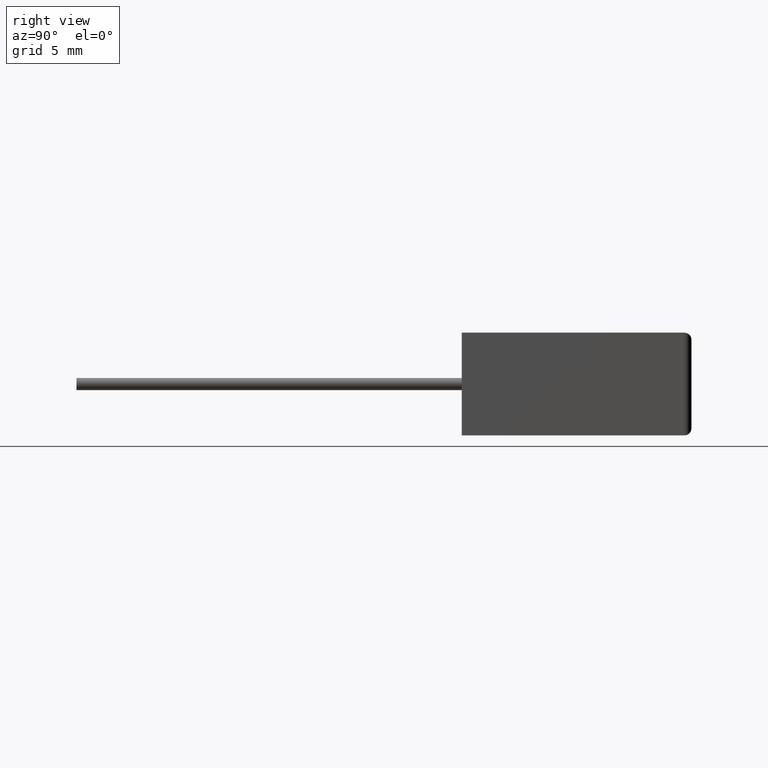
[diagram: clean part render]
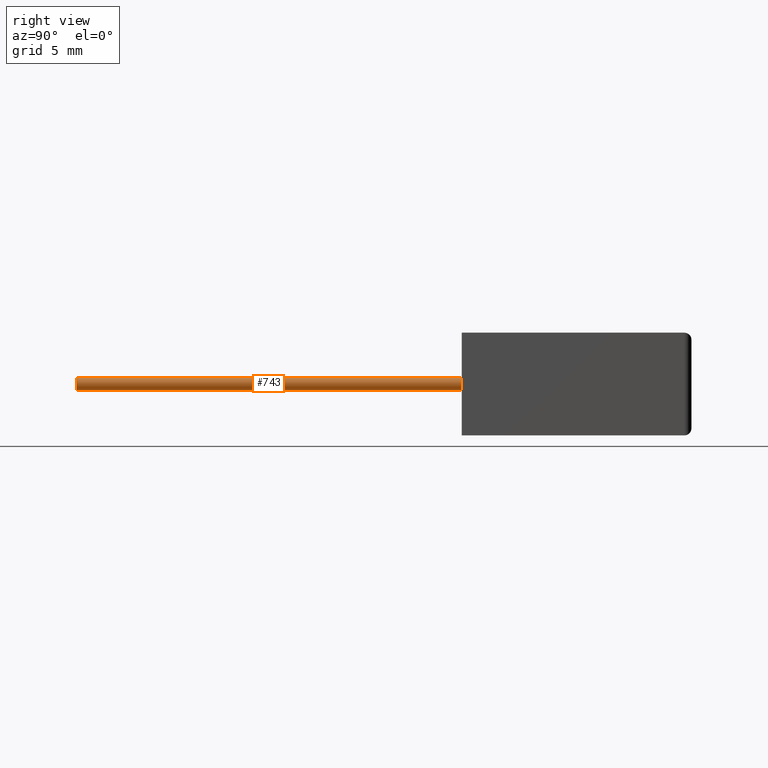
[diagram: same view with one face highlighted and labeled with its STEP entity id]
A machine part, right view. The second image highlights one B-rep face of the part: STEP entity #743.
In plain terms, the highlighted cylindrical surface (edge-blend (fillet) strip) has radius 0.425 mm, axis along (-0, 1, -0).
Its self-contained STEP definition (entity closure, byte-faithful):
#101 = EDGE_LOOP ( 'NONE', ( #1635, #1258, #1644, #2346 ) ) ;
#181 = AXIS2_PLACEMENT_3D ( 'NONE', #773, #2179, #1484 ) ;
#286 = VECTOR ( 'NONE', #618, 1000.000000000000000 ) ;
#359 = CARTESIAN_POINT ( 'NONE',  ( 24.64999999999999858, -27.00000000000000000, 3.175000000000000266 ) ) ;
#365 = CARTESIAN_POINT ( 'NONE',  ( 24.64999999999999858, 0.7500000000000006661, 3.600000000000000533 ) ) ;
#618 = DIRECTION ( 'NONE',  ( -0.000000000000000000, 1.000000000000000000, -0.000000000000000000 ) ) ;
#743 = ADVANCED_FACE ( 'NONE', ( #906 ), #2358, .T. ) ;
#753 = DIRECTION ( 'NONE',  ( 0.000000000000000000, 0.000000000000000000, -1.000000000000000000 ) ) ;
#773 = CARTESIAN_POINT ( 'NONE',  ( 24.64999999999999858, -27.00000000000000000, 3.600000000000000533 ) ) ;
#906 = FACE_OUTER_BOUND ( 'NONE', #101, .T. ) ;
#1011 = CARTESIAN_POINT ( 'NONE',  ( 24.64999999999999858, -27.00000000000000000, 3.600000000000000533 ) ) ;
#1019 = EDGE_CURVE ( 'NONE', #1289, #2463, #1772, .T. ) ;
#1141 = DIRECTION ( 'NONE',  ( 0.000000000000000000, -1.000000000000000000, -0.000000000000000000 ) ) ;
#1178 = AXIS2_PLACEMENT_3D ( 'NONE', #1011, #1951, #753 ) ;
#1240 = EDGE_CURVE ( 'NONE', #2654, #2007, #1721, .T. ) ;
#1258 = ORIENTED_EDGE ( 'NONE', *, *, #1626, .T. ) ;
#1289 = VERTEX_POINT ( 'NONE', #2564 ) ;
#1484 = DIRECTION ( 'NONE',  ( 0.000000000000000000, 0.000000000000000000, 1.000000000000000000 ) ) ;
#1626 = EDGE_CURVE ( 'NONE', #2463, #2654, #2044, .T. ) ;
#1635 = ORIENTED_EDGE ( 'NONE', *, *, #1019, .T. ) ;
#1636 = LINE ( 'NONE', #2750, #1903 ) ;
#1642 = CARTESIAN_POINT ( 'NONE',  ( 24.64999999999999858, 0.7500000000000006661, 3.175000000000000266 ) ) ;
#1644 = ORIENTED_EDGE ( 'NONE', *, *, #1240, .T. ) ;
#1670 = DIRECTION ( 'NONE',  ( -0.000000000000000000, 1.000000000000000000, -0.000000000000000000 ) ) ;
#1721 = CIRCLE ( 'NONE', #2164, 0.4250000000000000444 ) ;
#1772 = CIRCLE ( 'NONE', #1178, 0.4250000000000000444 ) ;
#1903 = VECTOR ( 'NONE', #1670, 1000.000000000000000 ) ;
#1951 = DIRECTION ( 'NONE',  ( -0.000000000000000000, 1.000000000000000000, -0.000000000000000000 ) ) ;
#2007 = VERTEX_POINT ( 'NONE', #3051 ) ;
#2044 = LINE ( 'NONE', #359, #286 ) ;
#2164 = AXIS2_PLACEMENT_3D ( 'NONE', #365, #1141, #2486 ) ;
#2179 = DIRECTION ( 'NONE',  ( -0.000000000000000000, 1.000000000000000000, -0.000000000000000000 ) ) ;
#2331 = EDGE_CURVE ( 'NONE', #1289, #2007, #1636, .T. ) ;
#2346 = ORIENTED_EDGE ( 'NONE', *, *, #2331, .F. ) ;
#2358 = CYLINDRICAL_SURFACE ( 'NONE', #181, 0.4249999999999996003 ) ;
#2458 = CARTESIAN_POINT ( 'NONE',  ( 24.64999999999999858, -27.00000000000000000, 3.175000000000000266 ) ) ;
#2463 = VERTEX_POINT ( 'NONE', #2458 ) ;
#2486 = DIRECTION ( 'NONE',  ( 0.000000000000000000, 0.000000000000000000, -1.000000000000000000 ) ) ;
#2564 = CARTESIAN_POINT ( 'NONE',  ( 24.64999999999999858, -27.00000000000000000, 4.025000000000000355 ) ) ;
#2654 = VERTEX_POINT ( 'NONE', #1642 ) ;
#2750 = CARTESIAN_POINT ( 'NONE',  ( 24.64999999999999858, -27.00000000000000000, 4.025000000000000355 ) ) ;
#3051 = CARTESIAN_POINT ( 'NONE',  ( 24.64999999999999858, 0.7500000000000006661, 4.025000000000000355 ) ) ;